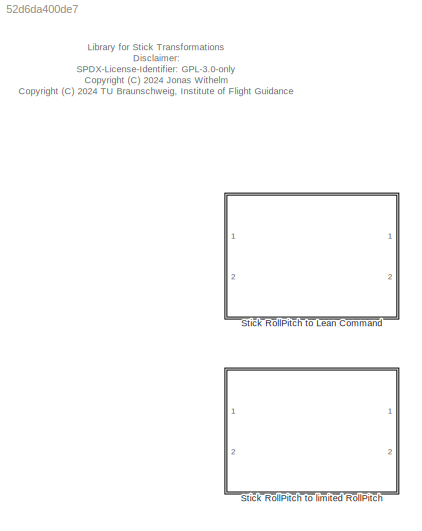
MODEL slx_52d6da400de7
KIND library
CONFIG AbsTol = auto
CONFIG EnableMultiTasking = off
CONFIG FixedStep = auto
CONFIG MaxStep = auto
CONFIG MinStep = auto
CONFIG RelTol = 1e-3
CONFIG SampleTimeConstraint = Unconstrained
CONFIG Solver = VariableStepAuto
CONFIG SolverName = VariableStepAuto
CONFIG StartTime = 0.0
CONFIG StopTime = 10.0
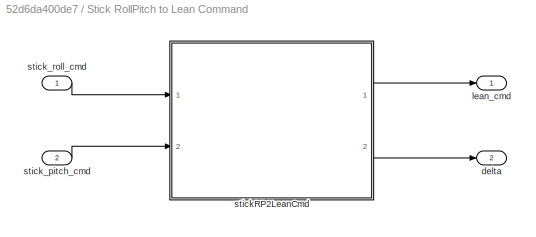
BLOCK [SubSystem] Stick RollPitch to Lean Command
  Ports = [2, 2]
  RequestExecContextInheritance = off
BLOCK [Outport] Stick RollPitch to Lean Command/delta
  IconDisplay = Port number
  Port = 2
BLOCK [Outport] Stick RollPitch to Lean Command/lean_cmd
  IconDisplay = Port number
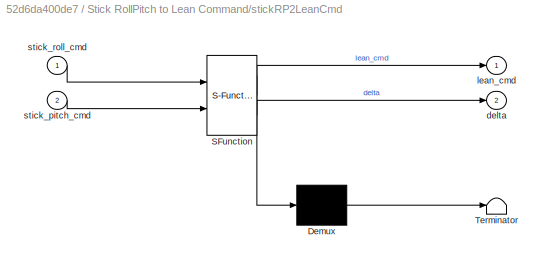
BLOCK [SubSystem] Stick RollPitch to Lean Command/stickRP2LeanCmd
  ErrorFcn = Stateflow.Translate.translate
  PermitHierarchicalResolution = ExplicitOnly
  Ports = [2, 2]
  RequestExecContextInheritance = off
  SFBlockType = MATLAB Function
  TreatAsAtomicUnit = on
BLOCK [Demux] Stick RollPitch to Lean Command/stickRP2LeanCmd/ Demux 
  Outputs = 1
  Ports = [1, 1]
BLOCK [S-Function] Stick RollPitch to Lean Command/stickRP2LeanCmd/ SFunction 
  EnableBusSupport = on
  FunctionName = sf_sfun
  Parameters = limiting_mode
  PortCounts = [2 3]
  Ports = [2, 3]
  SFcnIsStateOwnerBlock = off
  SFunctionDeploymentMode = off
  Tag = Stateflow S-Function stick_lib 6
BLOCK [Terminator] Stick RollPitch to Lean Command/stickRP2LeanCmd/ Terminator 
BLOCK [Outport] Stick RollPitch to Lean Command/stickRP2LeanCmd/delta
  IconDisplay = Port number
  Port = 2
BLOCK [Outport] Stick RollPitch to Lean Command/stickRP2LeanCmd/lean_cmd
  IconDisplay = Port number
BLOCK [Inport] Stick RollPitch to Lean Command/stickRP2LeanCmd/stick_pitch_cmd
  IconDisplay = Port number
  Port = 2
BLOCK [Inport] Stick RollPitch to Lean Command/stickRP2LeanCmd/stick_roll_cmd
  IconDisplay = Port number
BLOCK [Inport] Stick RollPitch to Lean Command/stick_pitch_cmd
  IconDisplay = Port number
  Port = 2
BLOCK [Inport] Stick RollPitch to Lean Command/stick_roll_cmd
  IconDisplay = Port number
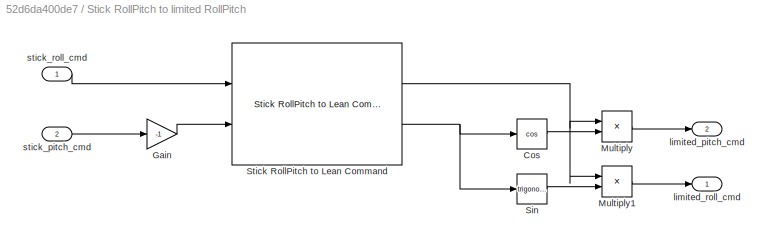
BLOCK [SubSystem] Stick RollPitch to limited RollPitch
  Ports = [2, 2]
  RequestExecContextInheritance = off
BLOCK [Trigonometry] Stick RollPitch to limited RollPitch/Cos
  Operator = cos
  Ports = [1, 1]
BLOCK [Gain] Stick RollPitch to limited RollPitch/Gain
  Gain = -1
  OutDataTypeStr = Inherit: Inherit via internal rule
  ParamDataTypeStr = Inherit: Inherit via internal rule
  SaturateOnIntegerOverflow = off
BLOCK [Product] Stick RollPitch to limited RollPitch/Multiply
  InputSameDT = off
  OutDataTypeStr = Inherit: Inherit via internal rule
  Ports = [2, 1]
  RndMeth = Floor
  SaturateOnIntegerOverflow = off
BLOCK [Product] Stick RollPitch to limited RollPitch/Multiply1
  InputSameDT = off
  OutDataTypeStr = Inherit: Inherit via internal rule
  Ports = [2, 1]
  RndMeth = Floor
  SaturateOnIntegerOverflow = off
BLOCK [Trigonometry] Stick RollPitch to limited RollPitch/Sin
  Ports = [1, 1]
BLOCK [Reference] Stick RollPitch to limited RollPitch/Stick RollPitch to Lean Command  REF=$bdroot/Stick RollPitch to Lean Command
  Ports = [2, 2]
  SourceBlock = $bdroot/Stick RollPitch to Lean Command
  SourceType = Stick RollPitch to Lean Command
BLOCK [Outport] Stick RollPitch to limited RollPitch/limited_pitch_cmd
  IconDisplay = Port number
  Port = 2
BLOCK [Outport] Stick RollPitch to limited RollPitch/limited_roll_cmd
  IconDisplay = Port number
BLOCK [Inport] Stick RollPitch to limited RollPitch/stick_pitch_cmd
  IconDisplay = Port number
  Port = 2
BLOCK [Inport] Stick RollPitch to limited RollPitch/stick_roll_cmd
  IconDisplay = Port number
ANNOTATION (root): Library for Stick Transformations Disclaimer: SPDX-License-Identifier: GPL-3.0-only <copyright redacted>
LINE Stick RollPitch to Lean Command/stickRP2LeanCmd:1 -> Stick RollPitch to Lean Command/lean_cmd:1
LINE Stick RollPitch to Lean Command/stickRP2LeanCmd:2 -> Stick RollPitch to Lean Command/delta:1
LINE Stick RollPitch to Lean Command/stick_pitch_cmd:1 -> Stick RollPitch to Lean Command/stickRP2LeanCmd:2
LINE Stick RollPitch to Lean Command/stick_roll_cmd:1 -> Stick RollPitch to Lean Command/stickRP2LeanCmd:1
LINE Stick RollPitch to limited RollPitch/Cos:1 -> Stick RollPitch to limited RollPitch/Multiply:2
LINE Stick RollPitch to limited RollPitch/Gain:1 -> Stick RollPitch to limited RollPitch/Stick RollPitch to Lean Command:2
LINE Stick RollPitch to limited RollPitch/Multiply1:1 -> Stick RollPitch to limited RollPitch/limited_roll_cmd:1
LINE Stick RollPitch to limited RollPitch/Multiply:1 -> Stick RollPitch to limited RollPitch/limited_pitch_cmd:1
LINE Stick RollPitch to limited RollPitch/Sin:1 -> Stick RollPitch to limited RollPitch/Multiply1:2
NET Stick RollPitch to limited RollPitch/Stick RollPitch to Lean Command:1 -> Stick RollPitch to limited RollPitch/Multiply1:1, Stick RollPitch to limited RollPitch/Multiply:1
NET Stick RollPitch to limited RollPitch/Stick RollPitch to Lean Command:2 -> Stick RollPitch to limited RollPitch/Cos:1, Stick RollPitch to limited RollPitch/Sin:1
LINE Stick RollPitch to limited RollPitch/stick_pitch_cmd:1 -> Stick RollPitch to limited RollPitch/Gain:1
LINE Stick RollPitch to limited RollPitch/stick_roll_cmd:1 -> Stick RollPitch to limited RollPitch/Stick RollPitch to Lean Command:1
note: NET lines group one-source signal fan-out (src -> all destinations, sorted); 1:1 wires keep LINE
CHART Stick RollPitch to Lean Command/stickRP2LeanCmd states=1 transitions=1
  STATE_LABEL 'eML_blk_kernel()'
  STATE_LABEL 'SCRIPT:\nfunction [lean_cmd, delta] = stickRP2LeanCmd(stick_roll_cmd, stick_pitch_cmd, limiting_mode)\n\n[lean_cmd, delta] = stickRP2LeanCmd(stick_roll_cmd, stick_pitch_cmd, limiting_mode);\n\nend\n'
